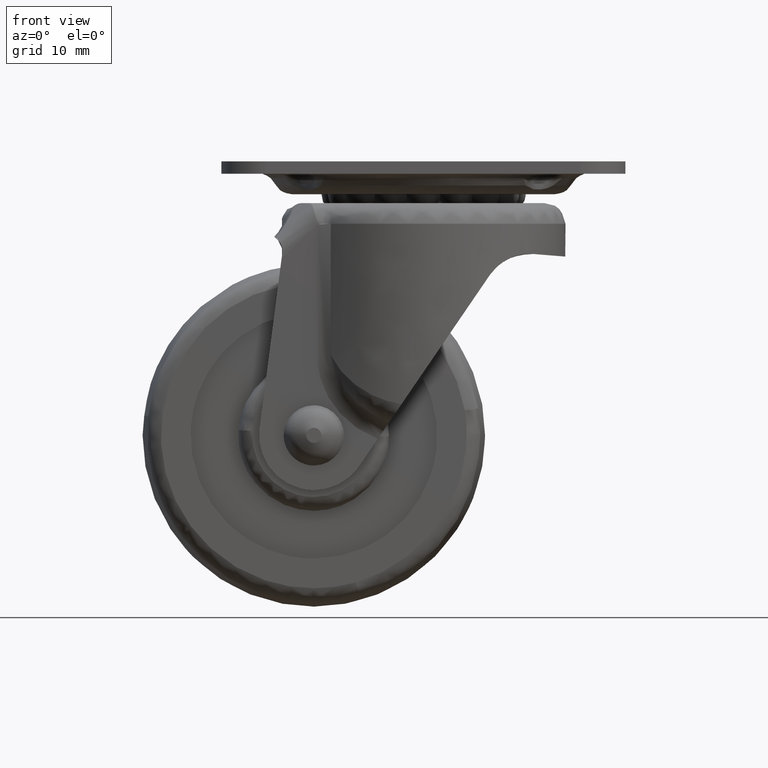
[diagram: clean part render]
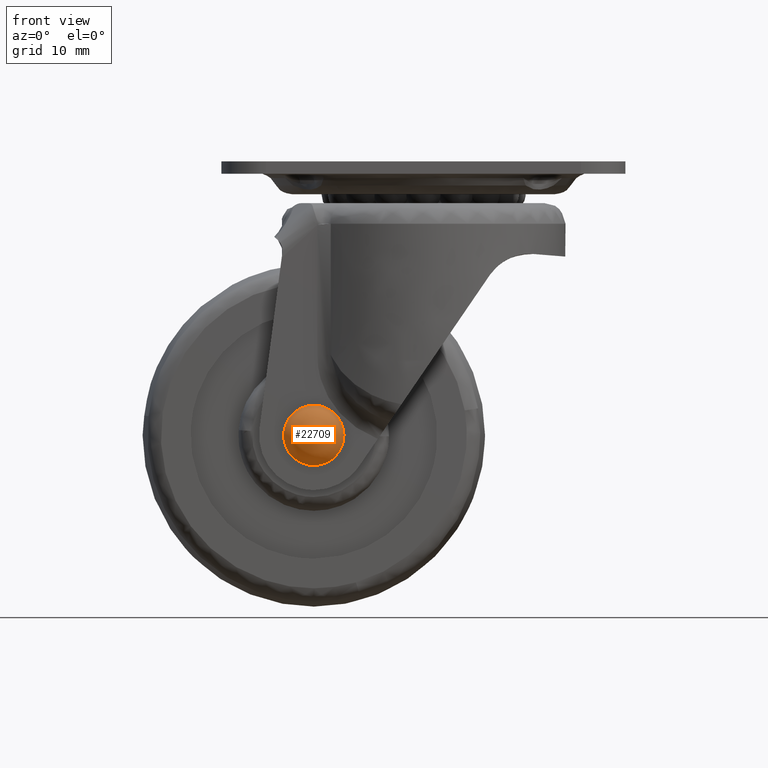
[diagram: same view with one face highlighted and labeled with its STEP entity id]
A machine part, front view. The second image highlights one B-rep face of the part: STEP entity #22709.
In plain terms, the highlighted face is a freeform B-spline surface patch.
Its self-contained STEP definition (entity closure, byte-faithful):
#22602=CARTESIAN_POINT('',(-16.0,-15.0,-35.600000262507272));
#22603=VERTEX_POINT('',#22602);
#22604=CARTESIAN_POINT('',(-16.0,-15.0,-44.399999737492742));
#22605=VERTEX_POINT('',#22604);
#22606=CARTESIAN_POINT('',(-16.0,-15.0,-35.600000262507272));
#22607=CARTESIAN_POINT('',(-20.399999737492731,-14.999999999999995,-35.600000262507265));
#22608=CARTESIAN_POINT('',(-20.399999737492742,-15.0,-40.0));
#22609=CARTESIAN_POINT('',(-20.399999737492731,-14.999999999999995,-44.399999737492742));
#22610=CARTESIAN_POINT('',(-16.0,-15.0,-44.399999737492742));
#22618=(BOUNDED_CURVE()B_SPLINE_CURVE(2,(#22606,#22607,#22608,#22609,#22610),.UNSPECIFIED.,.F.,.U.)B_SPLINE_CURVE_WITH_KNOTS((3,2,3),(0.500000000000000,0.750000000000000,1.0),.UNSPECIFIED.)CURVE()GEOMETRIC_REPRESENTATION_ITEM()RATIONAL_B_SPLINE_CURVE((1.0,0.707106781186548,1.0,0.707106781186548,1.0))REPRESENTATION_ITEM(''));
#22619=EDGE_CURVE('',#22603,#22605,#22618,.T.);
#22621=CARTESIAN_POINT('',(-16.0,-15.0,-44.399999737492742));
#22622=CARTESIAN_POINT('',(-11.600000262507264,-14.999999999999995,-44.399999737492742));
#22623=CARTESIAN_POINT('',(-11.600000262507271,-15.0,-40.0));
#22624=CARTESIAN_POINT('',(-11.600000262507264,-14.999999999999995,-35.600000262507265));
#22625=CARTESIAN_POINT('',(-16.0,-15.0,-35.600000262507272));
#22633=(BOUNDED_CURVE()B_SPLINE_CURVE(2,(#22621,#22622,#22623,#22624,#22625),.UNSPECIFIED.,.F.,.U.)B_SPLINE_CURVE_WITH_KNOTS((3,2,3),(0.0,0.250000000000000,0.500000000000000),.UNSPECIFIED.)CURVE()GEOMETRIC_REPRESENTATION_ITEM()RATIONAL_B_SPLINE_CURVE((1.0,0.707106781186548,1.0,0.707106781186548,1.0))REPRESENTATION_ITEM(''));
#22634=EDGE_CURVE('',#22605,#22603,#22633,.T.);
#22645=CARTESIAN_POINT('',(-19.471173719220150,-13.053986447475951,-43.471173719220147));
#22646=CARTESIAN_POINT('',(-18.276388215192956,-14.661645142857136,-44.552776430385912));
#22647=CARTESIAN_POINT('',(-13.723611784807032,-14.661645142857136,-44.552776430385912));
#22648=CARTESIAN_POINT('',(-12.528826280779855,-13.053986447475948,-43.471173719220147));
#22649=CARTESIAN_POINT('',(-20.552776430385919,-14.661645142857136,-42.276388215192952));
#22650=CARTESIAN_POINT('',(-19.306760469007369,-17.724668000000019,-43.306760469007372));
#22651=CARTESIAN_POINT('',(-12.693239530992630,-17.724668000000019,-43.306760469007372));
#22652=CARTESIAN_POINT('',(-11.447223569614071,-14.661645142857132,-42.276388215192952));
#22653=CARTESIAN_POINT('',(-20.552776430385919,-14.661645142857136,-37.723611784807026));
#22654=CARTESIAN_POINT('',(-19.306760469007369,-17.724668000000019,-36.693239530992628));
#22655=CARTESIAN_POINT('',(-12.693239530992630,-17.724668000000019,-36.693239530992628));
#22656=CARTESIAN_POINT('',(-11.447223569614071,-14.661645142857132,-37.723611784807026));
#22657=CARTESIAN_POINT('',(-19.471173719220150,-13.053986447475951,-36.528826280779853));
#22658=CARTESIAN_POINT('',(-18.276388215192956,-14.661645142857136,-35.447223569614067));
#22659=CARTESIAN_POINT('',(-13.723611784807032,-14.661645142857136,-35.447223569614067));
#22660=CARTESIAN_POINT('',(-12.528826280779855,-13.053986447475948,-36.528826280779853));
#22668=(BOUNDED_SURFACE()B_SPLINE_SURFACE(2,2,((#22645,#22649,#22653,#22657),(#22646,#22650,#22654,#22658),(#22647,#22651,#22655,#22659),(#22648,#22652,#22656,#22660)),.UNSPECIFIED.,.F.,.F.,.U.)B_SPLINE_SURFACE_WITH_KNOTS((3,1,3),(3,1,3),(0.0,5.392993085365048,10.785986170730100),(0.0,5.392993085365045,10.785986170730091),.UNSPECIFIED.)GEOMETRIC_REPRESENTATION_ITEM()RATIONAL_B_SPLINE_SURFACE(((1.905269362174295,1.452634681087148,1.452634681087148,1.905269362174295),(1.452634681087148,1.0,1.0,1.452634681087148),(1.452634681087148,1.0,1.0,1.452634681087148),(1.905269362174295,1.452634681087148,1.452634681087148,1.905269362174295)))REPRESENTATION_ITEM('')SURFACE());
#22669=ORIENTED_EDGE('',*,*,#22634,.T.);
#22670=ORIENTED_EDGE('',*,*,#22619,.T.);
#22671=EDGE_LOOP('',(#22669,#22670));
#22672=FACE_OUTER_BOUND('',#22671,.T.);
#22673=CARTESIAN_POINT('',(-16.0,-17.599995911589499,-41.099999300044097));
#22674=VERTEX_POINT('',#22673);
#22675=CARTESIAN_POINT('',(-16.0,-17.599995911589499,-38.900000699955903));
#22676=VERTEX_POINT('',#22675);
#22677=CARTESIAN_POINT('',(-16.0,-17.599995911589499,-41.099999300044097));
#22678=CARTESIAN_POINT('',(-14.900000699955898,-17.599995911589502,-41.099999300044097));
#22679=CARTESIAN_POINT('',(-14.900000699955900,-17.599995911589499,-40.0));
#22680=CARTESIAN_POINT('',(-14.900000699955898,-17.599995911589502,-38.900000699955896));
#22681=CARTESIAN_POINT('',(-16.0,-17.599995911589499,-38.900000699955903));
#22689=(BOUNDED_CURVE()B_SPLINE_CURVE(2,(#22677,#22678,#22679,#22680,#22681),.UNSPECIFIED.,.F.,.U.)B_SPLINE_CURVE_WITH_KNOTS((3,2,3),(0.0,0.250000000000000,0.500000000000000),.UNSPECIFIED.)CURVE()GEOMETRIC_REPRESENTATION_ITEM()RATIONAL_B_SPLINE_CURVE((1.0,0.707106781186548,1.0,0.707106781186548,1.0))REPRESENTATION_ITEM(''));
#22690=EDGE_CURVE('',#22674,#22676,#22689,.T.);
#22691=ORIENTED_EDGE('',*,*,#22690,.F.);
#22692=CARTESIAN_POINT('',(-16.0,-17.599995911589499,-38.900000699955903));
#22693=CARTESIAN_POINT('',(-17.099999300044100,-17.599995911589502,-38.900000699955896));
#22694=CARTESIAN_POINT('',(-17.099999300044100,-17.599995911589499,-40.0));
#22695=CARTESIAN_POINT('',(-17.099999300044100,-17.599995911589502,-41.099999300044097));
#22696=CARTESIAN_POINT('',(-16.0,-17.599995911589499,-41.099999300044097));
#22704=(BOUNDED_CURVE()B_SPLINE_CURVE(2,(#22692,#22693,#22694,#22695,#22696),.UNSPECIFIED.,.F.,.U.)B_SPLINE_CURVE_WITH_KNOTS((3,2,3),(0.500000000000000,0.750000000000000,1.0),.UNSPECIFIED.)CURVE()GEOMETRIC_REPRESENTATION_ITEM()RATIONAL_B_SPLINE_CURVE((1.0,0.707106781186548,1.0,0.707106781186548,1.0))REPRESENTATION_ITEM(''));
#22705=EDGE_CURVE('',#22676,#22674,#22704,.T.);
#22706=ORIENTED_EDGE('',*,*,#22705,.F.);
#22707=EDGE_LOOP('',(#22691,#22706));
#22708=FACE_BOUND('',#22707,.T.);
#22709=ADVANCED_FACE('',(#22672,#22708),#22668,.T.);